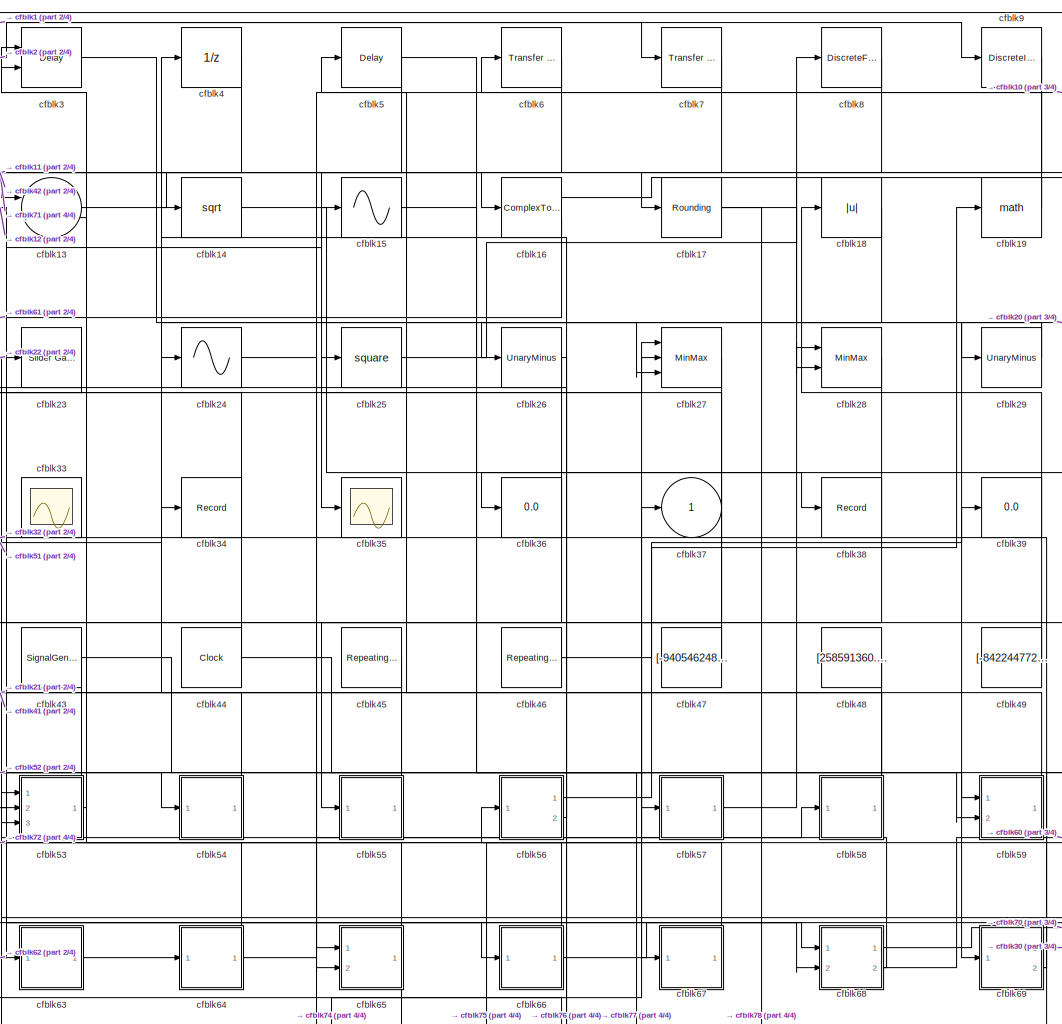
[diagram: root canvas - part 1/4, center side, full height]
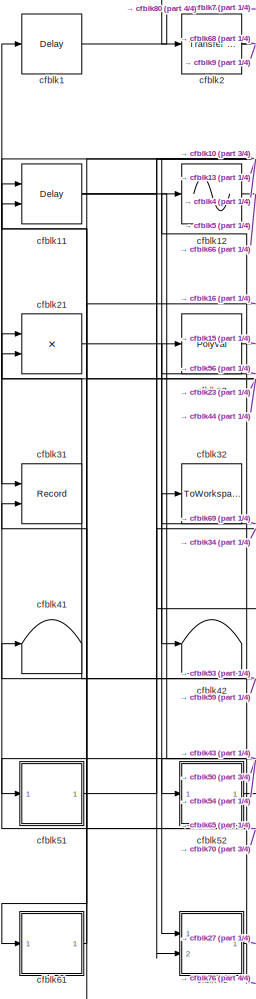
[diagram: root canvas - part 2/4, left side, full height]
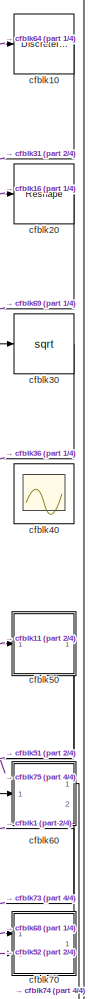
[diagram: root canvas - part 3/4, right side, full height]
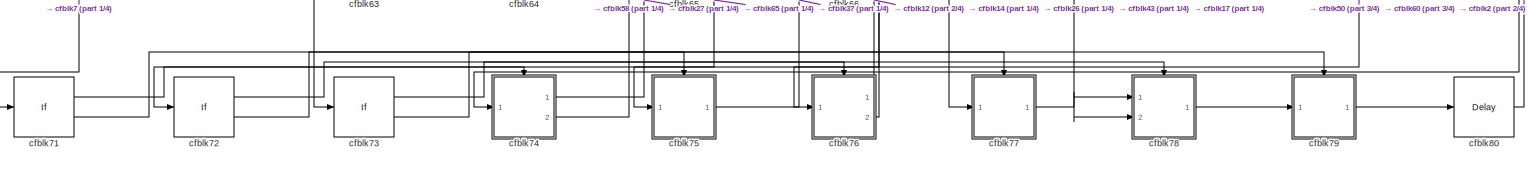
[diagram: root canvas - part 4/4, full width, bottom band]
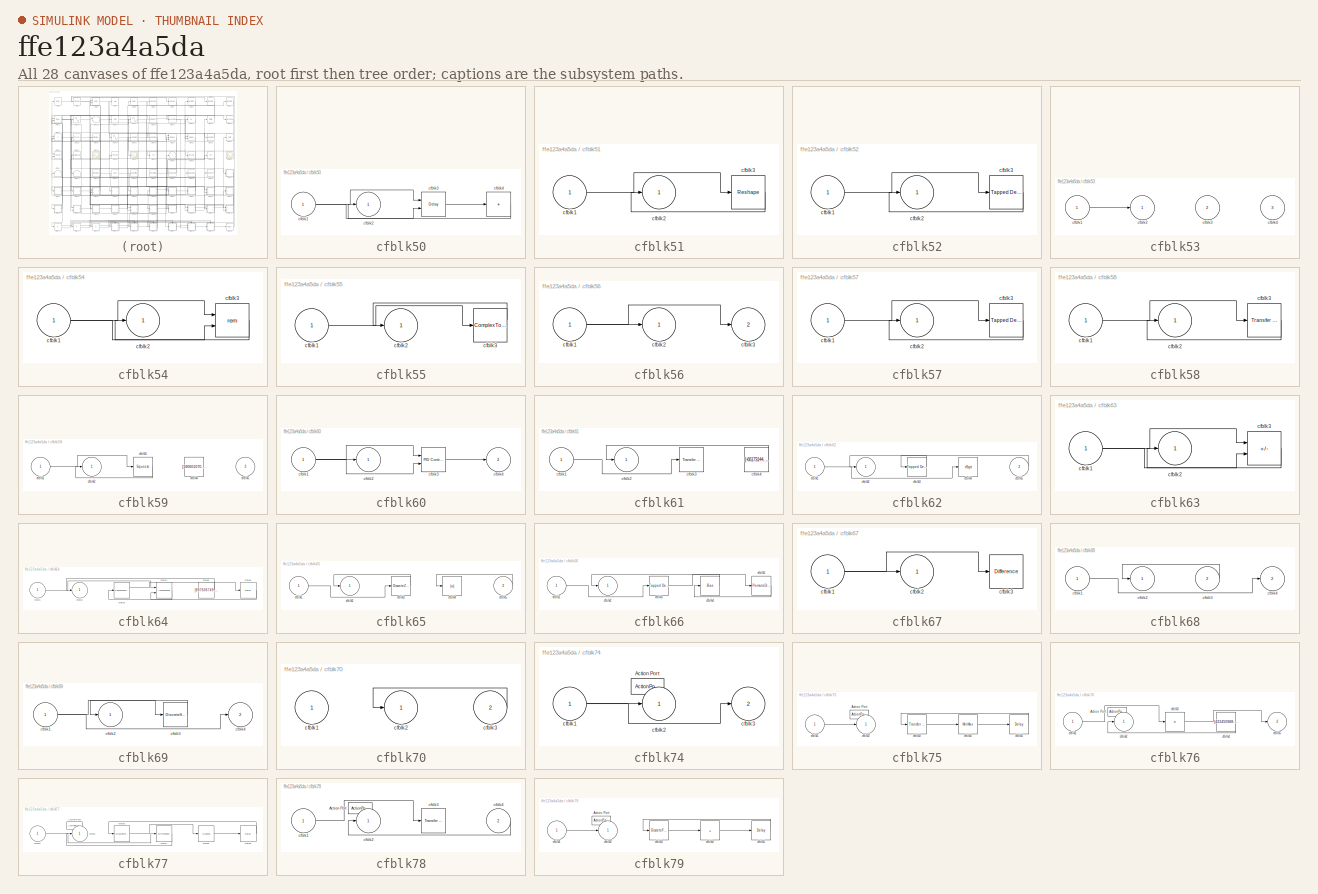
[diagram: thumbnail index - all 28 canvases of the model, root first then tree order]
MODEL slx_ffe123a4a5da
KIND model
CONFIG AbsTol = auto
CONFIG EnableMultiTasking = off
CONFIG FixedStep = auto
CONFIG MaxStep = auto
CONFIG MinStep = auto
CONFIG RelTol = 1e-3
CONFIG SampleTimeConstraint = Unconstrained
CONFIG SolverName = VariableStepAuto
CONFIG StartTime = 0.0
CONFIG StopTime = 10.0
BLOCK [Delay] cfblk1
  InputPortMap = u0
  Ports = [1, 1]
  SampleTime = 1
BLOCK [DiscreteIntegrator] cfblk10
  ICPrevOutput = DiscIntNeverNeededParam
  ICPrevScaledInput = DiscIntNeverNeededParam
  InitialConditionSetting = Auto
  Ports = [1, 1]
BLOCK [Delay] cfblk11
  DelayLengthSource = Input port
  InputPortMap = u0,p1
  Ports = [2, 1]
  SampleTime = 1
BLOCK [Sin] cfblk12
  Ports = [1, 1]
  SampleTime = 0
  TimeSource = Use external signal
BLOCK [Sum] cfblk13
  Inputs = |++
  Ports = [2, 1]
BLOCK [Sqrt] cfblk14
BLOCK [Sin] cfblk15
  Ports = [1, 1]
  SampleTime = 0
  TimeSource = Use external signal
BLOCK [ComplexToRealImag] cfblk16
  Ports = [1, 2]
BLOCK [Rounding] cfblk17
BLOCK [Abs] cfblk18
  SaturateOnIntegerOverflow = off
BLOCK [Math] cfblk19
  Ports = [1, 1]
BLOCK [Reference] cfblk2  REF=simulink/Discrete/Transfer Fcn
Real Zero
  Ports = [1, 1]
  SourceBlock = simulink/Discrete/Transfer Fcn\nReal Zero
  SourceProductBaseCode = SL
  SourceType = Transfer Fcn Real Zero
BLOCK [Reshape] cfblk20
  Ports = [1, 1]
BLOCK [Product] cfblk21
  Inputs = **
  Ports = [2, 1]
BLOCK [Polyval] cfblk22
  Coefs = [ +2.081618890e-019, -1.441693666e-014, +4.719686976e-010, -8.536869453e-006, +1.621573104e-001, -8.087801117e+001 ]
BLOCK [Reference] cfblk23  REF=simulink/Math
Operations/Slider
Gain
  Ports = [1, 1]
  SourceBlock = simulink/Math\nOperations/Slider\nGain
  SourceProductBaseCode = SL
  SourceType = Slider Gain
BLOCK [Sin] cfblk24
  Ports = [1, 1]
  SampleTime = 0
  TimeSource = Use external signal
BLOCK [Math] cfblk25
  Operator = square
  Ports = [1, 1]
BLOCK [UnaryMinus] cfblk26
BLOCK [MinMax] cfblk27
  Function = max
  Inputs = 3
  Ports = [3, 1]
BLOCK [MinMax] cfblk28
  Function = max
  Inputs = 2
  Ports = [2, 1]
BLOCK [UnaryMinus] cfblk29
BLOCK [Delay] cfblk3
  InputPortMap = u0,e6
  Ports = [2, 1]
  SampleTime = 1
  ShowEnablePort = on
BLOCK [Sqrt] cfblk30
BLOCK [Record] cfblk31
  CompatibilityTag = XY
  FileSettingsInternal = {"entries":[{"content":{"excelSettings":{"content":{},"type":"Streamout.ExcelSettings"}},"type":"Streamout.FileSettingStorage","uuid":"c413c589-d2ce-436c-aaba-4ffc6c089058"}],"packageUris":["http://schema.mathworks.com/mf0/streamout_blocks/R2020a"],"version":"1.0"}
  Layout = [1 1]
  Ports = [2]
  SignalsInternal = {"entries":[{"content":{"signals":[{"content":{"blockPath":["sampleModel160/cfblk31"],"channel":[],"dimensions":[1],"domain":"sampleModel160/cfblk31","lineColor":"#a2142f","plots":[1],"port":1,"sid":[""],"signalID":6037,"signalName":"cfblk10"},"type":"RecordBlkView.Signal","uuid":"72857fe4-462d-486d-a3e4-3c395ee845b6"},{"content":{"blockPath":["sampleModel160/cfblk31"],"channel":[],"dimensions":[1...<+383ch>
  VisualizationBindings = {"xyplotplugin":{"info":[{"series":[{"bindingParametersList":[{"parameter":"X-Axis","signalID":6037,"signalName":"cfblk10"},{"parameter":"Y-Axis","signalID":6041,"signalName":"cfblk61"}],"seriesID":10105}],"subplotID":1}]}}
BLOCK [ToWorkspace] cfblk32
  FixptAsFi = on
  MaxDataPoints = inf
  Ports = [1]
  SampleTime = -1
  SaveFormat = Timeseries
  VariableName = okfclqp
BLOCK [Scope] cfblk33
  Floating = on
  NumInputPorts = 1
  Ports = []
BLOCK [Record] cfblk34
  FileSettingsInternal = {"entries":[{"content":{"excelSettings":{"content":{},"type":"Streamout.ExcelSettings"}},"type":"Streamout.FileSettingStorage","uuid":"c9e76eac-59f3-42f9-ba3c-d666261c6b06"}],"packageUris":["http://schema.mathworks.com/mf0/streamout_blocks/R2020a"],"version":"1.0"}
  Ports = [1]
  SignalsInternal = {"entries":[{"content":{"signals":[{"content":{"blockPath":["sampleModel160/cfblk34"],"channel":[],"dimensions":[1],"domain":"sampleModel160/cfblk34","lineColor":"#fe330a","plots":[1],"port":1,"sid":[""],"signalID":6045,"signalName":"cfblk51"},"type":"RecordBlkView.Signal","uuid":"385a5dff-ef78-469a-be59-ea6837f228a9"}]},"type":"RecordBlkView.InputSignals","uuid":"b764ceec-8da9-4fc6-845a-cebcb7dba...<+97ch>
  VisualizationBindings = {"sparklinesplugin":{"info":[{"bindingParametersList":[],"subplotID":1}]}}
BLOCK [Scope] cfblk35
  Floating = off
  NumInputPorts = 1
  Ports = [1]
BLOCK [Display] cfblk36
  Decimation = 1
  Ports = [1]
BLOCK [Outport] cfblk37
BLOCK [Record] cfblk38
  FileSettingsInternal = {"entries":[{"content":{"excelSettings":{"content":{},"type":"Streamout.ExcelSettings"}},"type":"Streamout.FileSettingStorage","uuid":"a9748414-4318-452a-bfbb-77e6d7b29a13"}],"packageUris":["http://schema.mathworks.com/mf0/streamout_blocks/R2020a"],"version":"1.0"}
  Ports = [1]
  SignalsInternal = {"entries":[{"content":{"signals":[{"content":{"blockPath":["sampleModel160/cfblk38"],"channel":[],"dimensions":[1],"domain":"sampleModel160/cfblk38","lineColor":"#22b573","plots":[1],"port":1,"sid":[""],"signalID":6049,"signalName":"cfblk14"},"type":"RecordBlkView.Signal","uuid":"85378120-5b17-4b37-8955-e146c021a7fe"}]},"type":"RecordBlkView.InputSignals","uuid":"a0d2f558-881a-48b2-8250-b54130961...<+97ch>
  VisualizationBindings = {"sparklinesplugin":{"info":[{"bindingParametersList":[],"subplotID":1}]}}
BLOCK [Display] cfblk39
  Decimation = 1
  Ports = [1]
BLOCK [UnitDelay] cfblk4
  HasFrameUpgradeWarning = on
BLOCK [Scope] cfblk40
  Floating = on
  NumInputPorts = 1
  Ports = []
BLOCK [Terminator] cfblk41
BLOCK [Terminator] cfblk42
BLOCK [SignalGenerator] cfblk43
  Amplitude = [899162175.269200]
  Ports = [0, 1]
BLOCK [Clock] cfblk44
BLOCK [Reference] cfblk45  REF=simulink/Sources/Repeating
Sequence
Interpolated
  Ports = [0, 1]
  SourceBlock = simulink/Sources/Repeating\nSequence\nInterpolated
  SourceProductBaseCode = SL
  SourceType = Repeating Sequence Interpolated
BLOCK [Reference] cfblk46  REF=simulink/Sources/Repeating
Sequence
  Ports = [0, 1]
  SourceBlock = simulink/Sources/Repeating\nSequence
  SourceProductBaseCode = SL
  SourceType = Repeating table
BLOCK [Constant] cfblk47
  SampleTime = 1
  Value = [-940546248.249473]
BLOCK [Constant] cfblk48
  SampleTime = 1
  Value = [258591360.305295]
BLOCK [Constant] cfblk49
  SampleTime = 1
  Value = [-842244772.901293]
BLOCK [Delay] cfblk5
  InputPortMap = u0
  Ports = [1, 1]
  SampleTime = 1
BLOCK [SubSystem] cfblk50
  Ports = [1, 1]
  RequestExecContextInheritance = off
BLOCK [Inport] cfblk50/cfblk1
BLOCK [Outport] cfblk50/cfblk2
BLOCK [Delay] cfblk50/cfblk3
  DelayLengthSource = Input port
  InputPortMap = u0,p1
  Ports = [2, 1]
  SampleTime = 1
BLOCK [Sum] cfblk50/cfblk4
  IconShape = rectangular
  Inputs = +
  Ports = [1, 1]
BLOCK [SubSystem] cfblk51
  Ports = [1, 1]
  RequestExecContextInheritance = off
BLOCK [Inport] cfblk51/cfblk1
BLOCK [Outport] cfblk51/cfblk2
BLOCK [Reshape] cfblk51/cfblk3
  Ports = [1, 1]
BLOCK [SubSystem] cfblk52
  Ports = [1, 1]
  RequestExecContextInheritance = off
BLOCK [Inport] cfblk52/cfblk1
BLOCK [Outport] cfblk52/cfblk2
BLOCK [Reference] cfblk52/cfblk3  REF=simulink/Discrete/Tapped Delay
  Ports = [1, 1]
  SourceBlock = simulink/Discrete/Tapped Delay
  SourceProductBaseCode = SL
  SourceType = Tapped Delay Line
BLOCK [SubSystem] cfblk53
  Ports = [3, 1]
  RequestExecContextInheritance = off
BLOCK [Inport] cfblk53/cfblk1
BLOCK [Outport] cfblk53/cfblk2
BLOCK [Inport] cfblk53/cfblk3
  Port = 2
BLOCK [Inport] cfblk53/cfblk4
  Port = 3
BLOCK [SubSystem] cfblk54
  Ports = [1, 1]
  RequestExecContextInheritance = off
BLOCK [Inport] cfblk54/cfblk1
BLOCK [Outport] cfblk54/cfblk2
BLOCK [Math] cfblk54/cfblk3
  Operator = rem
  Ports = [2, 1]
BLOCK [SubSystem] cfblk55
  Ports = [1, 1]
  RequestExecContextInheritance = off
BLOCK [Inport] cfblk55/cfblk1
BLOCK [Outport] cfblk55/cfblk2
BLOCK [ComplexToMagnitudeAngle] cfblk55/cfblk3
  Ports = [1, 2]
BLOCK [SubSystem] cfblk56
  Ports = [1, 2]
  RequestExecContextInheritance = off
BLOCK [Inport] cfblk56/cfblk1
BLOCK [Outport] cfblk56/cfblk2
BLOCK [Outport] cfblk56/cfblk3
  Port = 2
BLOCK [SubSystem] cfblk57
  Ports = [1, 1]
  RequestExecContextInheritance = off
BLOCK [Inport] cfblk57/cfblk1
BLOCK [Outport] cfblk57/cfblk2
BLOCK [Reference] cfblk57/cfblk3  REF=simulink/Discrete/Tapped Delay
  Ports = [1, 1]
  SourceBlock = simulink/Discrete/Tapped Delay
  SourceProductBaseCode = SL
  SourceType = Tapped Delay Line
BLOCK [SubSystem] cfblk58
  Ports = [1, 1]
  RequestExecContextInheritance = off
BLOCK [Inport] cfblk58/cfblk1
BLOCK [Outport] cfblk58/cfblk2
BLOCK [Reference] cfblk58/cfblk3  REF=simulink/Discrete/Transfer Fcn
Real Zero
  Ports = [1, 1]
  SourceBlock = simulink/Discrete/Transfer Fcn\nReal Zero
  SourceProductBaseCode = SL
  SourceType = Transfer Fcn Real Zero
BLOCK [SubSystem] cfblk59
  Ports = [2, 1]
  RequestExecContextInheritance = off
BLOCK [Inport] cfblk59/cfblk1
BLOCK [Outport] cfblk59/cfblk2
BLOCK [Squeeze] cfblk59/cfblk3
BLOCK [Constant] cfblk59/cfblk4
  SampleTime = 1
  Value = [180601070.163832]
BLOCK [Inport] cfblk59/cfblk5
  Port = 2
BLOCK [Reference] cfblk6  REF=simulink/Discrete/Transfer Fcn
First Order
  Ports = [1, 1]
  SourceBlock = simulink/Discrete/Transfer Fcn\nFirst Order
  SourceProductBaseCode = SL
  SourceType = First Order Transfer Fcn
BLOCK [SubSystem] cfblk60
  Ports = [1, 2]
  RequestExecContextInheritance = off
BLOCK [Inport] cfblk60/cfblk1
BLOCK [Outport] cfblk60/cfblk2
BLOCK [Reference] cfblk60/cfblk3  REF=slpidlib/PID Controller (2DOF)
  Ports = [2, 1]
  SourceBlock = slpidlib/PID Controller (2DOF)
  SourceProductBaseCode = SL
  SourceType = PID 2dof
BLOCK [Outport] cfblk60/cfblk4
  Port = 2
BLOCK [SubSystem] cfblk61
  Ports = [1, 1]
  RequestExecContextInheritance = off
BLOCK [Inport] cfblk61/cfblk1
BLOCK [Outport] cfblk61/cfblk2
BLOCK [Reference] cfblk61/cfblk3  REF=simulink/Discrete/Transfer Fcn
Lead or Lag
  Ports = [1, 1]
  SourceBlock = simulink/Discrete/Transfer Fcn\nLead or Lag
  SourceProductBaseCode = SL
  SourceType = Lead or Lag Compensator
BLOCK [Constant] cfblk61/cfblk4
  SampleTime = 1
  Value = [-66173144.948453]
BLOCK [SubSystem] cfblk62
  Ports = [2, 1]
  RequestExecContextInheritance = off
BLOCK [Inport] cfblk62/cfblk1
BLOCK [Outport] cfblk62/cfblk2
BLOCK [Reference] cfblk62/cfblk3  REF=simulink/Discrete/Tapped Delay
  Ports = [1, 1]
  SourceBlock = simulink/Discrete/Tapped Delay
  SourceProductBaseCode = SL
  SourceType = Tapped Delay Line
BLOCK [Sqrt] cfblk62/cfblk4
  AlgorithmType = Newton-Raphson
  Operator = rSqrt
BLOCK [Inport] cfblk62/cfblk5
  Port = 2
BLOCK [SubSystem] cfblk63
  Ports = [1, 1]
  RequestExecContextInheritance = off
BLOCK [Inport] cfblk63/cfblk1
BLOCK [Outport] cfblk63/cfblk2
BLOCK [Sum] cfblk63/cfblk3
  IconShape = rectangular
  Inputs = +-
  Ports = [2, 1]
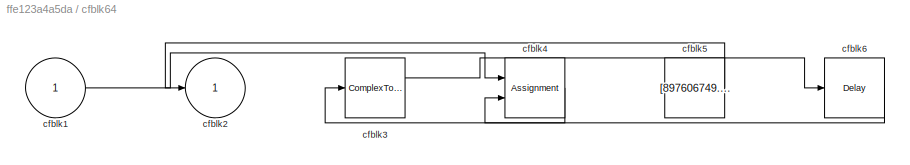
BLOCK [SubSystem] cfblk64
  Ports = [1, 1]
  RequestExecContextInheritance = off
BLOCK [Inport] cfblk64/cfblk1
BLOCK [Outport] cfblk64/cfblk2
BLOCK [ComplexToMagnitudeAngle] cfblk64/cfblk3
  Ports = [1, 2]
BLOCK [Assignment] cfblk64/cfblk4
  DiagnosticForDimensions = Warning
  IndexOptions = Index vector (dialog)
  Indices = 1
  OutputSizes = 1
  Ports = [2, 1]
BLOCK [Constant] cfblk64/cfblk5
  SampleTime = 1
  Value = [897606749.125989]
BLOCK [Delay] cfblk64/cfblk6
  InputPortMap = u0
  Ports = [1, 1]
  SampleTime = 1
BLOCK [SubSystem] cfblk65
  Ports = [2, 1]
  RequestExecContextInheritance = off
BLOCK [Inport] cfblk65/cfblk1
BLOCK [Outport] cfblk65/cfblk2
BLOCK [DiscreteZeroPole] cfblk65/cfblk3
  Gain = 1
  Poles = [0 0.5]
BLOCK [Abs] cfblk65/cfblk4
  SaturateOnIntegerOverflow = off
BLOCK [Inport] cfblk65/cfblk5
  Port = 2
BLOCK [SubSystem] cfblk66
  Ports = [1, 1]
  RequestExecContextInheritance = off
BLOCK [Inport] cfblk66/cfblk1
BLOCK [Outport] cfblk66/cfblk2
BLOCK [Reference] cfblk66/cfblk3  REF=simulink/Discrete/Tapped Delay
  Ports = [1, 1]
  SourceBlock = simulink/Discrete/Tapped Delay
  SourceProductBaseCode = SL
  SourceType = Tapped Delay Line
BLOCK [Bias] cfblk66/cfblk4
  Bias = [-827569026.072197]
  SaturateOnIntegerOverflow = off
BLOCK [PermuteDimensions] cfblk66/cfblk5
BLOCK [SubSystem] cfblk67
  Ports = [1, 1]
  RequestExecContextInheritance = off
BLOCK [Inport] cfblk67/cfblk1
BLOCK [Outport] cfblk67/cfblk2
BLOCK [Reference] cfblk67/cfblk3  REF=simulink/Discrete/Difference
  Ports = [1, 1]
  SourceBlock = simulink/Discrete/Difference
  SourceProductBaseCode = SL
  SourceType = Difference
BLOCK [SubSystem] cfblk68
  Ports = [2, 2]
  RequestExecContextInheritance = off
BLOCK [Inport] cfblk68/cfblk1
BLOCK [Outport] cfblk68/cfblk2
BLOCK [Inport] cfblk68/cfblk3
  Port = 2
BLOCK [Outport] cfblk68/cfblk4
  Port = 2
BLOCK [SubSystem] cfblk69
  Ports = [1, 2]
  RequestExecContextInheritance = off
BLOCK [Inport] cfblk69/cfblk1
BLOCK [Outport] cfblk69/cfblk2
BLOCK [DiscreteStateSpace] cfblk69/cfblk3
BLOCK [Outport] cfblk69/cfblk4
  Port = 2
BLOCK [Reference] cfblk7  REF=simulink/Discrete/Transfer Fcn
First Order
  Ports = [1, 1]
  SourceBlock = simulink/Discrete/Transfer Fcn\nFirst Order
  SourceProductBaseCode = SL
  SourceType = First Order Transfer Fcn
BLOCK [SubSystem] cfblk70
  Ports = [2, 1]
  RequestExecContextInheritance = off
BLOCK [Inport] cfblk70/cfblk1
BLOCK [Outport] cfblk70/cfblk2
BLOCK [Inport] cfblk70/cfblk3
  Port = 2
BLOCK [If] cfblk71
  IfExpression = u1 >= 0
  Ports = [1, 2]
  SampleTime = 1
BLOCK [If] cfblk72
  IfExpression = u1 >= 0
  Ports = [1, 2]
  SampleTime = 1
BLOCK [If] cfblk73
  IfExpression = u1 >= 0
  Ports = [1, 2]
  SampleTime = 1
BLOCK [SubSystem] cfblk74
  Ports = [1, 2, 0, 0, 0, 0, 0, 1]
  RequestExecContextInheritance = off
  TreatAsAtomicUnit = on
BLOCK [ActionPort] cfblk74/Action Port
  ActionPortLabel = if(u1 >= 0)
BLOCK [Inport] cfblk74/cfblk1
BLOCK [Outport] cfblk74/cfblk2
BLOCK [Outport] cfblk74/cfblk3
  Port = 2
BLOCK [SubSystem] cfblk75
  Ports = [1, 1, 0, 0, 0, 0, 0, 1]
  RequestExecContextInheritance = off
  TreatAsAtomicUnit = on
BLOCK [ActionPort] cfblk75/Action Port
  ActionPortLabel = else
BLOCK [Inport] cfblk75/cfblk1
BLOCK [Outport] cfblk75/cfblk2
BLOCK [Reference] cfblk75/cfblk3  REF=simulink/Discrete/Transfer Fcn
Real Zero
  Ports = [1, 1]
  SourceBlock = simulink/Discrete/Transfer Fcn\nReal Zero
  SourceProductBaseCode = SL
  SourceType = Transfer Fcn Real Zero
BLOCK [MinMax] cfblk75/cfblk4
  Ports = [1, 1]
BLOCK [Delay] cfblk75/cfblk5
  InputPortMap = u0
  Ports = [1, 1]
BLOCK [SubSystem] cfblk76
  Ports = [1, 2, 0, 0, 0, 0, 0, 1]
  RequestExecContextInheritance = off
  TreatAsAtomicUnit = on
BLOCK [ActionPort] cfblk76/Action Port
  ActionPortLabel = if(u1 >= 0)
BLOCK [Inport] cfblk76/cfblk1
BLOCK [Outport] cfblk76/cfblk2
BLOCK [Product] cfblk76/cfblk3
  Inputs = *
  Ports = [1, 1]
BLOCK [Constant] cfblk76/cfblk4
  SampleTime = 1
  Value = [422450988.893337]
BLOCK [Outport] cfblk76/cfblk5
  Port = 2
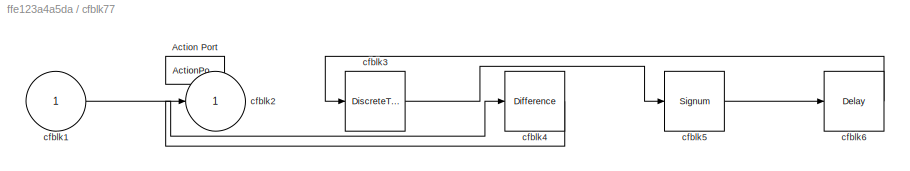
BLOCK [SubSystem] cfblk77
  Ports = [1, 1, 0, 0, 0, 0, 0, 1]
  RequestExecContextInheritance = off
  TreatAsAtomicUnit = on
BLOCK [ActionPort] cfblk77/Action Port
  ActionPortLabel = else
BLOCK [Inport] cfblk77/cfblk1
BLOCK [Outport] cfblk77/cfblk2
BLOCK [DiscreteTransferFcn] cfblk77/cfblk3
  InputPortMap = u0
  Ports = [1, 1]
BLOCK [Reference] cfblk77/cfblk4  REF=simulink/Discrete/Difference
  Ports = [1, 1]
  SourceBlock = simulink/Discrete/Difference
  SourceProductBaseCode = SL
  SourceType = Difference
BLOCK [Signum] cfblk77/cfblk5
BLOCK [Delay] cfblk77/cfblk6
  InputPortMap = u0
  Ports = [1, 1]
BLOCK [SubSystem] cfblk78
  Ports = [2, 1, 0, 0, 0, 0, 0, 1]
  RequestExecContextInheritance = off
  TreatAsAtomicUnit = on
BLOCK [ActionPort] cfblk78/Action Port
  ActionPortLabel = if(u1 >= 0)
BLOCK [Inport] cfblk78/cfblk1
BLOCK [Outport] cfblk78/cfblk2
BLOCK [Reference] cfblk78/cfblk3  REF=simulink/Discrete/Transfer Fcn
Lead or Lag
  Ports = [1, 1]
  SourceBlock = simulink/Discrete/Transfer Fcn\nLead or Lag
  SourceProductBaseCode = SL
  SourceType = Lead or Lag Compensator
BLOCK [Inport] cfblk78/cfblk4
  Port = 2
BLOCK [SubSystem] cfblk79
  Ports = [1, 1, 0, 0, 0, 0, 0, 1]
  RequestExecContextInheritance = off
  TreatAsAtomicUnit = on
BLOCK [ActionPort] cfblk79/Action Port
  ActionPortLabel = else
BLOCK [Inport] cfblk79/cfblk1
BLOCK [Outport] cfblk79/cfblk2
BLOCK [DiscreteFilter] cfblk79/cfblk3
  InputPortMap = u0
  Ports = [1, 1]
BLOCK [Sum] cfblk79/cfblk4
  IconShape = rectangular
  Inputs = +
  Ports = [1, 1]
BLOCK [Delay] cfblk79/cfblk5
  InputPortMap = u0
  Ports = [1, 1]
BLOCK [DiscreteFir] cfblk8
  InputPortMap = u0
  OutputPortMap = o0
  Ports = [1, 1]
  SampleTime = 1
BLOCK [Delay] cfblk80
  InputPortMap = u0
  Ports = [1, 1]
  SampleTime = 1
BLOCK [DiscreteIntegrator] cfblk9
  ICPrevOutput = DiscIntNeverNeededParam
  ICPrevScaledInput = DiscIntNeverNeededParam
  InitialConditionSetting = Auto
  Ports = [1, 1]
LINE cfblk10:1 -> cfblk31:1
NET cfblk11:1 -> cfblk13:1, cfblk50:1, cfblk54:1
LINE cfblk12:1 -> cfblk66:1
LINE cfblk13:1 -> cfblk16:1
LINE cfblk14:1 -> cfblk38:1
LINE cfblk15:1 -> cfblk59:1
LINE cfblk16:1 -> cfblk20:1
LINE cfblk16:2 -> cfblk61:1
NET cfblk17:1 -> cfblk29:1, cfblk78:2
LINE cfblk18:1 -> cfblk26:1
LINE cfblk19:1 -> cfblk6:1
LINE cfblk1:1 -> cfblk7:1
LINE cfblk20:1 -> cfblk69:1
LINE cfblk21:1 -> cfblk62:1
LINE cfblk22:1 -> cfblk15:1
LINE cfblk23:1 -> cfblk21:2
LINE cfblk24:1 -> cfblk65:1
LINE cfblk25:1 -> cfblk8:1
NET cfblk26:1 -> cfblk53:1, cfblk76:1
LINE cfblk27:1 -> cfblk67:1
LINE cfblk28:1 -> cfblk55:1
LINE cfblk29:1 -> cfblk24:1
NET cfblk2:1 -> cfblk68:2, cfblk9:1
LINE cfblk30:1 -> cfblk36:1
LINE cfblk3:1 -> cfblk27:3
NET cfblk43:1 -> cfblk52:1, cfblk77:1
NET cfblk44:1 -> cfblk11:2, cfblk57:1
LINE cfblk45:1 -> cfblk65:2
LINE cfblk46:1 -> cfblk39:1
LINE cfblk47:1 -> cfblk25:1
LINE cfblk48:1 -> cfblk63:1
LINE cfblk49:1 -> cfblk18:1
LINE cfblk4:1 -> cfblk42:1
NET cfblk50/cfblk1:1 -> cfblk50/cfblk3:1, cfblk50/cfblk3:2
LINE cfblk50/cfblk3:1 -> cfblk50/cfblk4:1
LINE cfblk50/cfblk4:1 -> cfblk50/cfblk2:1
NET cfblk50:1 -> cfblk51:1, cfblk75:1
LINE cfblk51/cfblk1:1 -> cfblk51/cfblk3:1
LINE cfblk51/cfblk3:1 -> cfblk51/cfblk2:1
LINE cfblk51:1 -> cfblk34:1
LINE cfblk52/cfblk1:1 -> cfblk52/cfblk3:1
LINE cfblk52/cfblk3:1 -> cfblk52/cfblk2:1
LINE cfblk52:1 -> cfblk70:2
LINE cfblk53/cfblk1:1 -> cfblk53/cfblk2:1
NET cfblk53:1 -> cfblk21:1, cfblk3:2
NET cfblk54/cfblk1:1 -> cfblk54/cfblk3:1, cfblk54/cfblk3:2
LINE cfblk54/cfblk3:1 -> cfblk54/cfblk2:1
LINE cfblk54:1 -> cfblk4:1
LINE cfblk55/cfblk1:1 -> cfblk55/cfblk3:1
LINE cfblk55/cfblk3:1 -> cfblk55/cfblk2:1
LINE cfblk55:1 -> cfblk23:1
NET cfblk56/cfblk1:1 -> cfblk56/cfblk2:1, cfblk56/cfblk3:1
LINE cfblk56:1 -> cfblk19:1
LINE cfblk56:2 -> cfblk22:1
LINE cfblk57/cfblk1:1 -> cfblk57/cfblk3:1
LINE cfblk57/cfblk3:1 -> cfblk57/cfblk2:1
LINE cfblk57:1 -> cfblk28:1
LINE cfblk58/cfblk1:1 -> cfblk58/cfblk3:1
LINE cfblk58/cfblk3:1 -> cfblk58/cfblk2:1
NET cfblk58:1 -> cfblk13:2, cfblk5:1
LINE cfblk59/cfblk1:1 -> cfblk59/cfblk3:1
LINE cfblk59/cfblk3:1 -> cfblk59/cfblk2:1
LINE cfblk59:1 -> cfblk41:1
NET cfblk5:1 -> cfblk59:2, cfblk62:2
NET cfblk60/cfblk1:1 -> cfblk60/cfblk2:1, cfblk60/cfblk3:1, cfblk60/cfblk3:2
LINE cfblk60/cfblk3:1 -> cfblk60/cfblk4:1
LINE cfblk60:1 -> cfblk74:1
LINE cfblk60:2 -> cfblk73:1
LINE cfblk61/cfblk1:1 -> cfblk61/cfblk3:1
LINE cfblk61/cfblk4:1 -> cfblk61/cfblk2:1
LINE cfblk61:1 -> cfblk31:2
LINE cfblk62/cfblk1:1 -> cfblk62/cfblk4:1
LINE cfblk62/cfblk3:1 -> cfblk62/cfblk2:1
LINE cfblk62/cfblk5:1 -> cfblk62/cfblk3:1
LINE cfblk62:1 -> cfblk27:2
NET cfblk63/cfblk1:1 -> cfblk63/cfblk3:1, cfblk63/cfblk3:2
LINE cfblk63/cfblk3:1 -> cfblk63/cfblk2:1
LINE cfblk63:1 -> cfblk64:1
LINE cfblk64/cfblk1:1 -> cfblk64/cfblk4:1
LINE cfblk64/cfblk3:1 -> cfblk64/cfblk6:1
LINE cfblk64/cfblk4:1 -> cfblk64/cfblk3:1
LINE cfblk64/cfblk5:1 -> cfblk64/cfblk2:1
LINE cfblk64/cfblk6:1 -> cfblk64/cfblk4:2
NET cfblk64:1 -> cfblk10:1, cfblk53:2
LINE cfblk65/cfblk1:1 -> cfblk65/cfblk3:1
LINE cfblk65/cfblk3:1 -> cfblk65/cfblk2:1
LINE cfblk65/cfblk5:1 -> cfblk65/cfblk4:1
NET cfblk65:1 -> cfblk11:1, cfblk72:1
LINE cfblk66/cfblk1:1 -> cfblk66/cfblk3:1
LINE cfblk66/cfblk3:1 -> cfblk66/cfblk5:1
LINE cfblk66/cfblk4:1 -> cfblk66/cfblk2:1
LINE cfblk66/cfblk5:1 -> cfblk66/cfblk4:1
NET cfblk66:1 -> cfblk3:1, cfblk68:1
NET cfblk67/cfblk1:1 -> cfblk67/cfblk2:1, cfblk67/cfblk3:1
LINE cfblk67:1 -> cfblk56:1
LINE cfblk68/cfblk1:1 -> cfblk68/cfblk4:1
LINE cfblk68/cfblk3:1 -> cfblk68/cfblk2:1
LINE cfblk68:1 -> cfblk70:1
NET cfblk68:2 -> cfblk53:3, cfblk60:1
NET cfblk69/cfblk1:1 -> cfblk69/cfblk3:1, cfblk69/cfblk4:1
LINE cfblk69/cfblk3:1 -> cfblk69/cfblk2:1
LINE cfblk69:1 -> cfblk30:1
LINE cfblk69:2 -> cfblk32:1
LINE cfblk6:1 -> cfblk35:1
LINE cfblk70/cfblk3:1 -> cfblk70/cfblk2:1
LINE cfblk70:1 -> cfblk1:1
LINE cfblk71:1 -> cfblk74:ifaction
LINE cfblk71:2 -> cfblk75:ifaction
LINE cfblk72:1 -> cfblk76:ifaction
LINE cfblk72:2 -> cfblk77:ifaction
LINE cfblk73:1 -> cfblk78:ifaction
LINE cfblk73:2 -> cfblk79:ifaction
NET cfblk74/cfblk1:1 -> cfblk74/cfblk2:1, cfblk74/cfblk3:1
LINE cfblk74:1 -> cfblk27:1
LINE cfblk74:2 -> cfblk58:1
LINE cfblk75/cfblk1:1 -> cfblk75/cfblk2:1
LINE cfblk75/cfblk3:1 -> cfblk75/cfblk4:1
LINE cfblk75/cfblk4:1 -> cfblk75/cfblk5:1
LINE cfblk75/cfblk5:1 -> cfblk75/cfblk3:1
LINE cfblk75:1 -> cfblk37:1
LINE cfblk76/cfblk1:1 -> cfblk76/cfblk3:1
LINE cfblk76/cfblk3:1 -> cfblk76/cfblk5:1
LINE cfblk76/cfblk4:1 -> cfblk76/cfblk2:1
LINE cfblk76:1 -> cfblk12:1
LINE cfblk76:2 -> cfblk14:1
LINE cfblk77/cfblk1:1 -> cfblk77/cfblk4:1
LINE cfblk77/cfblk3:1 -> cfblk77/cfblk5:1
LINE cfblk77/cfblk4:1 -> cfblk77/cfblk2:1
LINE cfblk77/cfblk5:1 -> cfblk77/cfblk6:1
LINE cfblk77/cfblk6:1 -> cfblk77/cfblk3:1
LINE cfblk77:1 -> cfblk78:1
LINE cfblk78/cfblk1:1 -> cfblk78/cfblk3:1
LINE cfblk78/cfblk4:1 -> cfblk78/cfblk2:1
LINE cfblk78:1 -> cfblk79:1
LINE cfblk79/cfblk1:1 -> cfblk79/cfblk2:1
LINE cfblk79/cfblk3:1 -> cfblk79/cfblk4:1
LINE cfblk79/cfblk4:1 -> cfblk79/cfblk5:1
LINE cfblk79/cfblk5:1 -> cfblk79/cfblk3:1
LINE cfblk79:1 -> cfblk80:1
LINE cfblk7:1 -> cfblk71:1
LINE cfblk80:1 -> cfblk2:1
LINE cfblk8:1 -> cfblk17:1
LINE cfblk9:1 -> cfblk28:2
note: NET lines group one-source signal fan-out (src -> all destinations, sorted); 1:1 wires keep LINE
